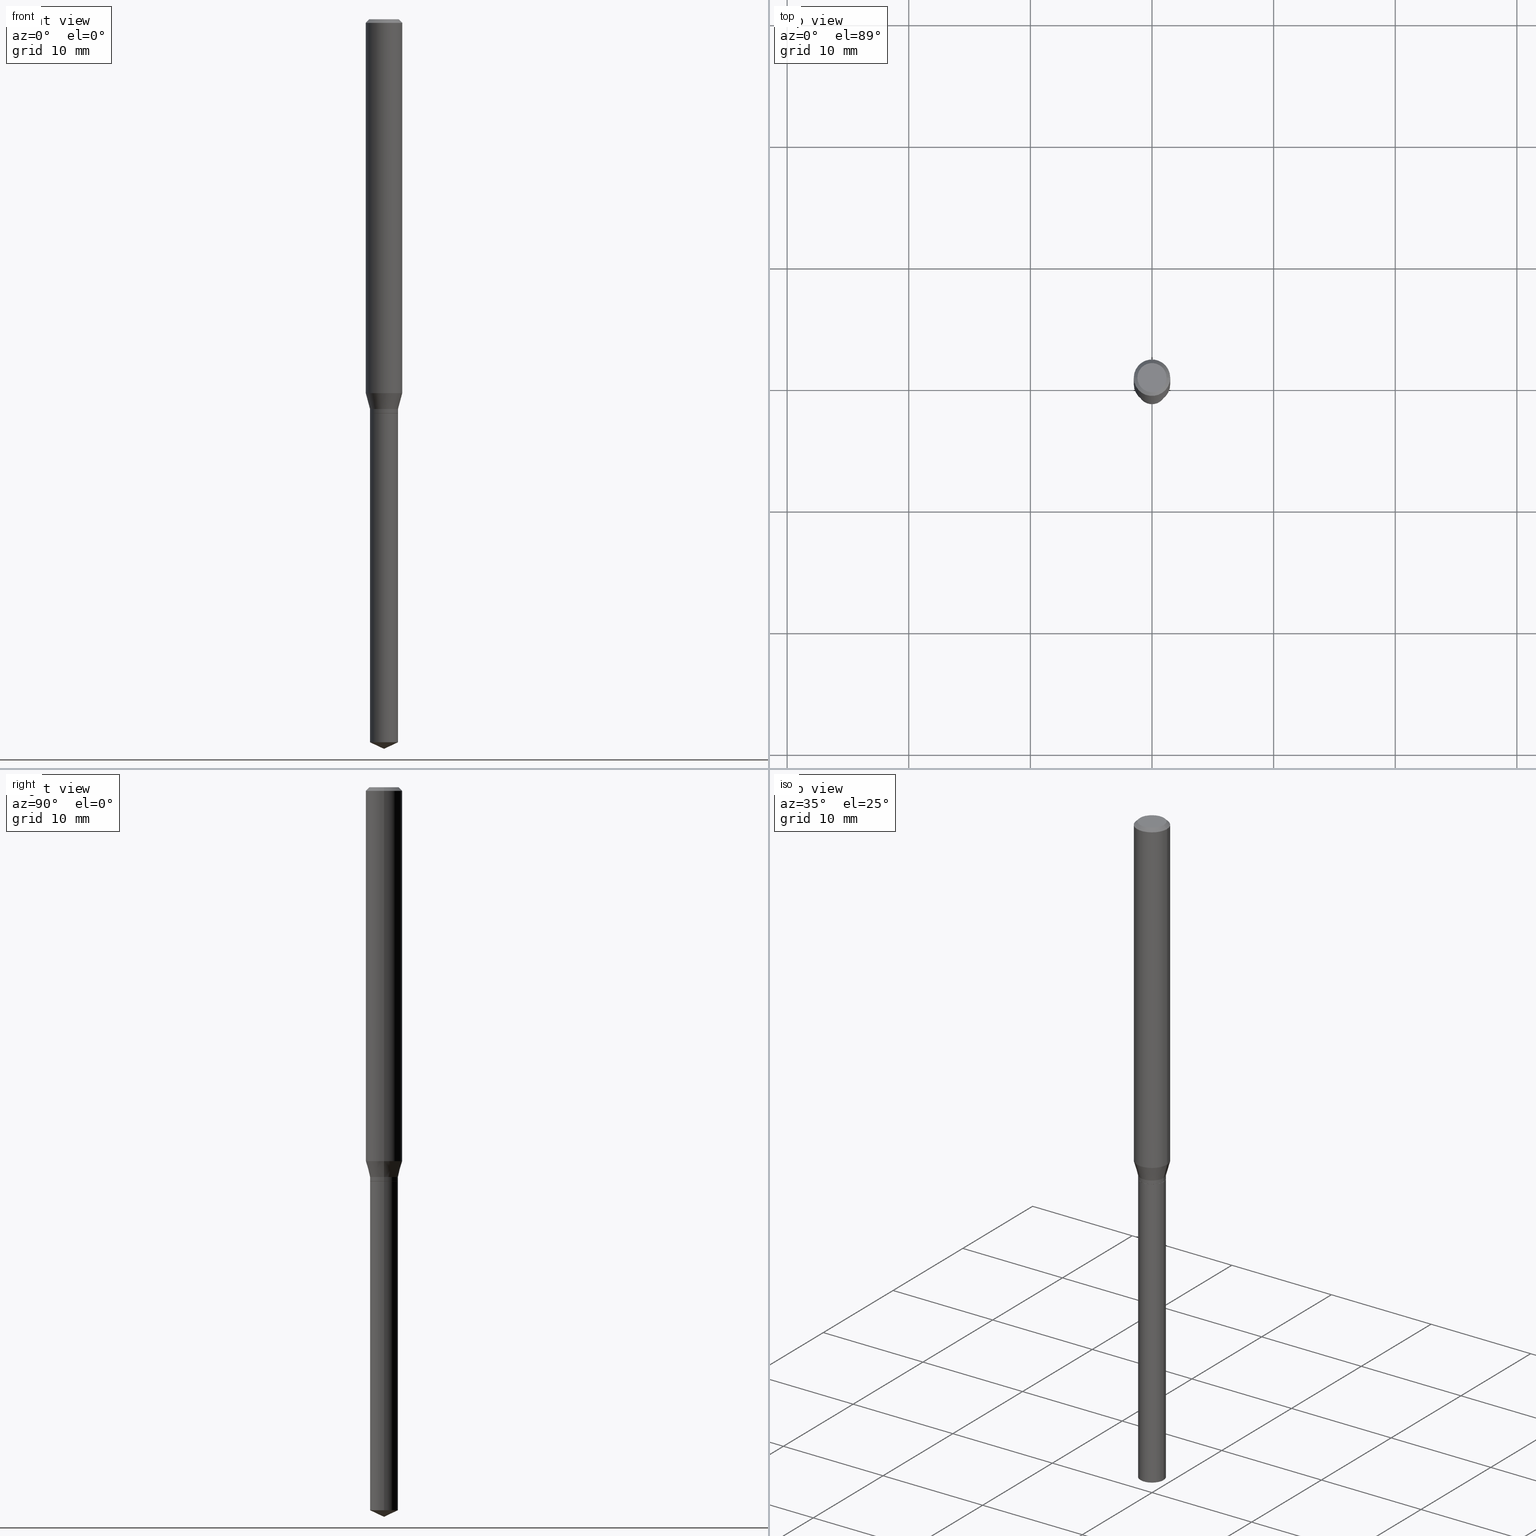
[diagram: canonical four-view strip — front | top / right | iso, engineering-drawing reading convention]
A machine part, canonical four-view strip (front | top / right | iso — engineering-drawing reading convention). The complete STEP part file that produces these views, byte-faithful:
ISO-10303-21;
HEADER;
FILE_DESCRIPTION (( 'STEP AP203' ),
    '1' );
FILE_NAME ('08382.STEP',
    '2024-04-24T14:46:04',
    ( '' ),
    ( '' ),
    'SwSTEP 2.0',
    'SolidWorks 2023',
    '' );
FILE_SCHEMA (( 'CONFIG_CONTROL_DESIGN' ));
ENDSEC;

DATA;
#1 = AXIS2_PLACEMENT_3D ( 'NONE', #481, #247, #170 ) ;
#2 = EDGE_CURVE ( 'NONE', #431, #167, #312, .T. ) ;
#3 = CONICAL_SURFACE ( 'NONE', #271, 84.42940631927322670, 1.134464013796310899 ) ;
#4 = FACE_OUTER_BOUND ( 'NONE', #17, .T. ) ;
#5 = DIRECTION ( 'NONE',  ( 1.000000000000000000, -6.982962677686259611E-15, 0.000000000000000000 ) ) ;
#6 = CARTESIAN_POINT ( 'NONE',  ( 0.04530000000000002774, -3.163282092991880824E-16, 2.208908079435559889E-30 ) ) ;
#7 = DIRECTION ( 'NONE',  ( -2.445468806185136877E-29, 3.491481338843145188E-15, 1.000000000000000000 ) ) ;
#8 = DIRECTION ( 'NONE',  ( -2.445468806185136597E-29, 3.491481338843145583E-15, 1.000000000000000000 ) ) ;
#9 = ORIENTED_EDGE ( 'NONE', *, *, #266, .F. ) ;
#10 = LINE ( 'NONE', #348, #304 ) ;
#11 = ORIENTED_EDGE ( 'NONE', *, *, #372, .T. ) ;
#12 = DIMENSIONAL_EXPONENTS ( 1.000000000000000000, 0.000000000000000000, 0.000000000000000000, 0.000000000000000000, 0.000000000000000000, 0.000000000000000000, 0.000000000000000000 ) ;
#13 = EDGE_CURVE ( 'NONE', #440, #24, #77, .T. ) ;
#14 = CARTESIAN_POINT ( 'NONE',  ( 2.960201599440548705E-29, -4.226383349286463524E-15, -1.210484301395927664 ) ) ;
#15 = CIRCLE ( 'NONE', #418, 0.04529999999999999999 ) ;
#16 = CONICAL_SURFACE ( 'NONE', #65, 0.04479999999999999954, 0.7853981633978495136 ) ;
#17 = EDGE_LOOP ( 'NONE', ( #390, #175 ) ) ;
#18 = DIRECTION ( 'NONE',  ( 2.445468806185136597E-29, -3.491481338843145583E-15, -1.000000000000000000 ) ) ;
#19 = VERTEX_POINT ( 'NONE', #373 ) ;
#20 = CARTESIAN_POINT ( 'NONE',  ( -0.04530000000000000693, -7.851249929804849954E-15, -2.340876263085578390 ) ) ;
#21 = VERTEX_POINT ( 'NONE', #106 ) ;
#22 = ADVANCED_FACE ( 'NONE', ( #71 ), #37, .T. ) ;
#23 = DIRECTION ( 'NONE',  ( -0.2588190451025211281, 5.211531920934548675E-15, 0.9659258262890682012 ) ) ;
#24 = VERTEX_POINT ( 'NONE', #110 ) ;
#25 = VECTOR ( 'NONE', #7, 39.37007874015748143 ) ;
#26 = CARTESIAN_POINT ( 'NONE',  ( 0.04724000000000000421, -3.852183633974369345E-16, -3.380025165621689721E-19 ) ) ;
#27 = ORIENTED_EDGE ( 'NONE', *, *, #208, .F. ) ;
#28 = CARTESIAN_POINT ( 'NONE',  ( 3.117728181005432506E-29, -4.451289558891128871E-15, -1.274900000000000588 ) ) ;
#29 = DIRECTION ( 'NONE',  ( -2.445468806185136597E-29, 3.491481338843145583E-15, 1.000000000000000000 ) ) ;
#30 = APPROVAL_PERSON_ORGANIZATION ( #487, #69, #445 ) ;
#31 = VECTOR ( 'NONE', #183, 39.37007874015748143 ) ;
#32 = COORDINATED_UNIVERSAL_TIME_OFFSET ( 5, 0, .BEHIND. ) ;
#33 = CC_DESIGN_PERSON_AND_ORGANIZATION_ASSIGNMENT ( #292, #375, ( #111 ) ) ;
#34 = ORIENTED_EDGE ( 'NONE', *, *, #229, .T. ) ;
#35 = DATE_AND_TIME ( #334, #362 ) ;
#36 = LINE ( 'NONE', #330, #31 ) ;
#37 = CYLINDRICAL_SURFACE ( 'NONE', #94, 0.04530000000000002774 ) ;
#38 = CC_DESIGN_DATE_AND_TIME_ASSIGNMENT ( #254, #216, ( #237 ) ) ;
#39 = AXIS2_PLACEMENT_3D ( 'NONE', #128, #393, #276 ) ;
#40 = VECTOR ( 'NONE', #235, 39.37007874015748143 ) ;
#41 = DIRECTION ( 'NONE',  ( -2.445468806185136597E-29, 3.491481338843145583E-15, 1.000000000000000000 ) ) ;
#42 = CARTESIAN_POINT ( 'NONE',  ( -0.04724000000000000421, 3.504923541997677355E-16, -3.380025165670481712E-19 ) ) ;
#43 = CARTESIAN_POINT ( 'NONE',  ( -9.050210213589845843E-28, 1.292130163076976058E-13, 37.00807874015747956 ) ) ;
#44 = PRODUCT_DEFINITION_SHAPE ( 'NONE', 'NONE',  #237 ) ;
#45 = EDGE_LOOP ( 'NONE', ( #252, #360, #310, #64 ) ) ;
#46 = AXIS2_PLACEMENT_3D ( 'NONE', #326, #182, #176 ) ;
#47 = DIRECTION ( 'NONE',  ( 2.438088387897960049E-29, -3.491481338843145188E-15, -1.000000000000000000 ) ) ;
#48 = AXIS2_PLACEMENT_3D ( 'NONE', #488, #184, #259 ) ;
#49 = CARTESIAN_POINT ( 'NONE',  ( 0.04530000000000002081, -4.721879362651469813E-15, -1.261800000000000255 ) ) ;
#50 = ADVANCED_FACE ( 'NONE', ( #114 ), #295, .T. ) ;
#51 = DIRECTION ( 'NONE',  ( 1.000000000000000000, -6.982962677686268288E-15, 0.000000000000000000 ) ) ;
#52 = DIRECTION ( 'NONE',  ( -0.7071067811868312347, 7.493145998871379679E-15, 0.7071067811862637997 ) ) ;
#53 = CC_DESIGN_APPROVAL ( #455, ( #156 ) ) ;
#54 = EDGE_LOOP ( 'NONE', ( #435, #275, #321, #211 ) ) ;
#55 = AXIS2_PLACEMENT_3D ( 'NONE', #413, #287, #177 ) ;
#56 = PERSON_AND_ORGANIZATION ( #480, #79 ) ;
#57 = FACE_OUTER_BOUND ( 'NONE', #420, .T. ) ;
#58 = ADVANCED_FACE ( 'NONE', ( #255 ), #442, .T. ) ;
#59 = ORIENTED_EDGE ( 'NONE', *, *, #132, .T. ) ;
#60 = DIRECTION ( 'NONE',  ( -1.000000000000000000, 6.982962677686265922E-15, -4.876176775795935793E-29 ) ) ;
#61 = EDGE_LOOP ( 'NONE', ( #127, #129, #268, #27 ) ) ;
#62 = CALENDAR_DATE ( 2024, 24, 4 ) ;
#63 = DIRECTION ( 'NONE',  ( -2.445468806185136597E-29, 3.491481338843145583E-15, 1.000000000000000000 ) ) ;
#64 = ORIENTED_EDGE ( 'NONE', *, *, #477, .F. ) ;
#65 = AXIS2_PLACEMENT_3D ( 'NONE', #396, #475, #209 ) ;
#66 = VECTOR ( 'NONE', #228, 39.37007874015748854 ) ;
#67 =( LENGTH_UNIT ( ) NAMED_UNIT ( * ) SI_UNIT ( $, .METRE. ) );
#68 = VERTEX_POINT ( 'NONE', #339 ) ;
#69 = APPROVAL ( #145, 'UNSPECIFIED' ) ;
#70 = COORDINATED_UNIVERSAL_TIME_OFFSET ( 5, 0, .BEHIND. ) ;
#71 = FACE_OUTER_BOUND ( 'NONE', #61, .T. ) ;
#72 = DIRECTION ( 'NONE',  ( -2.445468806185136597E-29, 3.491481338843145583E-15, 1.000000000000000000 ) ) ;
#73 = APPLICATION_PROTOCOL_DEFINITION ( 'international standard', 'config_control_design', 1994, #296 ) ;
#74 = EDGE_CURVE ( 'NONE', #19, #153, #225, .T. ) ;
#75 = PLANE ( 'NONE',  #55 ) ;
#76 = ORIENTED_EDGE ( 'NONE', *, *, #421, .T. ) ;
#77 = LINE ( 'NONE', #338, #112 ) ;
#78 = AXIS2_PLACEMENT_3D ( 'NONE', #446, #453, #484 ) ;
#79 = ORGANIZATION ( 'UNSPECIFIED', 'UNSPECIFIED', '' ) ;
#80 = LINE ( 'NONE', #464, #227 ) ;
#81 = EDGE_CURVE ( 'NONE', #205, #448, #199, .T. ) ;
#82 = FACE_OUTER_BOUND ( 'NONE', #285, .T. ) ;
#83 = CARTESIAN_POINT ( 'NONE',  ( -9.050210213589845843E-28, 1.292130163076976058E-13, 37.00807874015747956 ) ) ;
#84 =( GEOMETRIC_REPRESENTATION_CONTEXT ( 3 ) GLOBAL_UNCERTAINTY_ASSIGNED_CONTEXT ( ( #100 ) ) GLOBAL_UNIT_ASSIGNED_CONTEXT ( ( #447, #328, #409 ) ) REPRESENTATION_CONTEXT ( 'NONE', 'WORKASPACE' ) );
#85 = CARTESIAN_POINT ( 'NONE',  ( -0.05905000000000015098, -3.806807863820123242E-15, -1.210484301395927664 ) ) ;
#86 = AXIS2_PLACEMENT_3D ( 'NONE', #83, #382, #272 ) ;
#87 = ORIENTED_EDGE ( 'NONE', *, *, #428, .F. ) ;
#88 = FACE_OUTER_BOUND ( 'NONE', #140, .T. ) ;
#89 = DIRECTION ( 'NONE',  ( 1.000000000000000000, -6.982962677686266711E-15, 0.000000000000000000 ) ) ;
#90 = ORIENTED_EDGE ( 'NONE', *, *, #385, .F. ) ;
#91 = CARTESIAN_POINT ( 'NONE',  ( 0.04530000000000002081, -4.721879362651469813E-15, -1.261800000000000255 ) ) ;
#92 = CIRCLE ( 'NONE', #124, 0.05905000000000015098 ) ;
#93 = ORIENTED_EDGE ( 'NONE', *, *, #13, .T. ) ;
#94 = AXIS2_PLACEMENT_3D ( 'NONE', #451, #221, #107 ) ;
#95 = CARTESIAN_POINT ( 'NONE',  ( -0.04530000000000002081, -4.083675294052956100E-15, -1.261800000000000255 ) ) ;
#96 = ORIENTED_EDGE ( 'NONE', *, *, #288, .T. ) ;
#97 = APPROVAL_ROLE ( '' ) ;
#98 = CARTESIAN_POINT ( 'NONE',  ( 0.04479999999999999954, -4.765872027520893280E-15, -1.275400000000000311 ) ) ;
#99 = ORIENTED_EDGE ( 'NONE', *, *, #428, .T. ) ;
#100 = UNCERTAINTY_MEASURE_WITH_UNIT (LENGTH_MEASURE( 1.000000000000000082E-05 ), #447, 'distance_accuracy_value', 'NONE');
#101 = ORIENTED_EDGE ( 'NONE', *, *, #336, .F. ) ;
#102 = AXIS2_PLACEMENT_3D ( 'NONE', #406, #368, #449 ) ;
#103 = ADVANCED_FACE ( 'NONE', ( #366 ), #251, .T. ) ;
#104 = AXIS2_PLACEMENT_3D ( 'NONE', #257, #377, #411 ) ;
#105 = APPROVAL_DATE_TIME ( #109, #69 ) ;
#106 = CARTESIAN_POINT ( 'NONE',  ( -0.04529999999999999999, -5.991204685033035870E-15, -1.275400000000000311 ) ) ;
#107 = DIRECTION ( 'NONE',  ( 1.000000000000000000, -6.982962677686266711E-15, 4.876176775795935232E-29 ) ) ;
#108 = ADVANCED_FACE ( 'NONE', ( #149 ), #179, .T. ) ;
#109 = DATE_AND_TIME ( #113, #210 ) ;
#110 = CARTESIAN_POINT ( 'NONE',  ( 0.04530000000000000693, -8.489453998403362090E-15, -2.340876263085578390 ) ) ;
#111 = PRODUCT_DEFINITION_FORMATION_WITH_SPECIFIED_SOURCE ( 'ANY', '', #161, .NOT_KNOWN. ) ;
#112 = VECTOR ( 'NONE', #298, 39.37007874015748854 ) ;
#113 = CALENDAR_DATE ( 2024, 24, 4 ) ;
#114 = FACE_OUTER_BOUND ( 'NONE', #250, .T. ) ;
#115 = DIRECTION ( 'NONE',  ( -2.445468806185136597E-29, 3.491481338843145583E-15, 1.000000000000000000 ) ) ;
#116 = DIRECTION ( 'NONE',  ( -2.445468806185136877E-29, 3.491481338843145188E-15, 1.000000000000000000 ) ) ;
#117 = CC_DESIGN_SECURITY_CLASSIFICATION ( #156, ( #111 ) ) ;
#118 = CARTESIAN_POINT ( 'NONE',  ( 3.118950915408523626E-29, -4.453035299560548797E-15, -1.275400000000000311 ) ) ;
#119 = ORIENTED_EDGE ( 'NONE', *, *, #347, .F. ) ;
#120 = LINE ( 'NONE', #454, #363 ) ;
#121 = ORIENTED_EDGE ( 'NONE', *, *, #273, .F. ) ;
#122 = ADVANCED_FACE ( 'NONE', ( #4 ), #75, .F. ) ;
#123 = DIRECTION ( 'NONE',  ( 0.7071067811865453523, -7.319954787623248157E-15, -0.7071067811865496822 ) ) ;
#124 = AXIS2_PLACEMENT_3D ( 'NONE', #14, #398, #244 ) ;
#125 = DIRECTION ( 'NONE',  ( -2.445468806185136597E-29, 3.491481338843145583E-15, 1.000000000000000000 ) ) ;
#126 = CIRCLE ( 'NONE', #333, 0.04479999999999999954 ) ;
#127 = ORIENTED_EDGE ( 'NONE', *, *, #452, .T. ) ;
#128 = CARTESIAN_POINT ( 'NONE',  ( 3.118950915408523626E-29, -4.453035299560548797E-15, -1.275400000000000311 ) ) ;
#129 = ORIENTED_EDGE ( 'NONE', *, *, #468, .T. ) ;
#130 = DIRECTION ( 'NONE',  ( 1.000000000000000000, -6.982962677686266711E-15, 4.876176775795936353E-29 ) ) ;
#131 = ORIENTED_EDGE ( 'NONE', *, *, #139, .F. ) ;
#132 = EDGE_CURVE ( 'NONE', #476, #68, #36, .T. ) ;
#133 = DIRECTION ( 'NONE',  ( -2.445468806185136597E-29, 3.491481338843145583E-15, 1.000000000000000000 ) ) ;
#134 = AXIS2_PLACEMENT_3D ( 'NONE', #240, #467, #89 ) ;
#135 = ORIENTED_EDGE ( 'NONE', *, *, #74, .F. ) ;
#136 = LINE ( 'NONE', #478, #233 ) ;
#137 = ORIENTED_EDGE ( 'NONE', *, *, #357, .F. ) ;
#138 = DIRECTION ( 'NONE',  ( -2.445468806185136597E-29, 3.491481338843145583E-15, 1.000000000000000000 ) ) ;
#139 = EDGE_CURVE ( 'NONE', #427, #24, #15, .T. ) ;
#140 = EDGE_LOOP ( 'NONE', ( #479, #207 ) ) ;
#141 = DATE_AND_TIME ( #62, #485 ) ;
#142 = DIRECTION ( 'NONE',  ( 1.000000000000000000, -6.982962677686266711E-15, 4.876185090822587894E-29 ) ) ;
#143 = CC_DESIGN_APPROVAL ( #473, ( #111 ) ) ;
#144 = VECTOR ( 'NONE', #423, 39.37007874015748143 ) ;
#145 = APPROVAL_STATUS ( 'not_yet_approved' ) ;
#146 = DIRECTION ( 'NONE',  ( 1.000000000000000000, -6.982962677686271444E-15, 0.000000000000000000 ) ) ;
#147 = EDGE_CURVE ( 'NONE', #24, #427, #152, .T. ) ;
#148 = APPROVAL_DATE_TIME ( #35, #473 ) ;
#149 = FACE_OUTER_BOUND ( 'NONE', #325, .T. ) ;
#150 = COORDINATED_UNIVERSAL_TIME_OFFSET ( 5, 0, .BEHIND. ) ;
#151 = DIRECTION ( 'NONE',  ( -2.445468806185136597E-29, 3.491481338843145583E-15, 1.000000000000000000 ) ) ;
#152 = CIRCLE ( 'NONE', #379, 0.04529999999999999999 ) ;
#153 = VERTEX_POINT ( 'NONE', #291 ) ;
#154 = DIRECTION ( 'NONE',  ( -2.445468806185136597E-29, 3.491481338843145583E-15, 1.000000000000000000 ) ) ;
#155 = DIRECTION ( 'NONE',  ( 1.000000000000000000, -6.982962677686268288E-15, 0.000000000000000000 ) ) ;
#156 = SECURITY_CLASSIFICATION ( '', '', #433 ) ;
#157 = LINE ( 'NONE', #425, #66 ) ;
#158 = EDGE_CURVE ( 'NONE', #300, #195, #462, .T. ) ;
#159 = CARTESIAN_POINT ( 'NONE',  ( -0.04479999999999999954, -4.132062926765913850E-15, -1.275400000000000311 ) ) ;
#160 = DIRECTION ( 'NONE',  ( -1.000000000000000000, 6.982962677686265922E-15, -4.876176775795935793E-29 ) ) ;
#161 = PRODUCT ( '08382', '08382', '', ( #331 ) ) ;
#162 = ORIENTED_EDGE ( 'NONE', *, *, #477, .T. ) ;
#163 = FACE_OUTER_BOUND ( 'NONE', #242, .T. ) ;
#164 = ORIENTED_EDGE ( 'NONE', *, *, #253, .F. ) ;
#165 = DIRECTION ( 'NONE',  ( 1.000000000000000000, -6.982962677686266711E-15, 4.876185090822587894E-29 ) ) ;
#166 = ADVANCED_FACE ( 'NONE', ( #265 ), #424, .T. ) ;
#167 = VERTEX_POINT ( 'NONE', #341 ) ;
#168 = CARTESIAN_POINT ( 'NONE',  ( 5.776197320209293305E-29, -8.246878922347511025E-15, -2.362000000000000099 ) ) ;
#169 = ORIENTED_EDGE ( 'NONE', *, *, #336, .T. ) ;
#170 = DIRECTION ( 'NONE',  ( 1.000000000000000000, -6.982962677686266711E-15, 4.876176775795936353E-29 ) ) ;
#171 = ORIENTED_EDGE ( 'NONE', *, *, #414, .T. ) ;
#172 = AXIS2_PLACEMENT_3D ( 'NONE', #28, #181, #222 ) ;
#173 = EDGE_CURVE ( 'NONE', #448, #68, #10, .T. ) ;
#174 = CARTESIAN_POINT ( 'NONE',  ( 0.05905000000000015098, -4.638727295403837655E-15, -1.210484301395927664 ) ) ;
#175 = ORIENTED_EDGE ( 'NONE', *, *, #303, .F. ) ;
#176 = DIRECTION ( 'NONE',  ( 1.000000000000000000, -6.982962677686262766E-15, 0.000000000000000000 ) ) ;
#177 = DIRECTION ( 'NONE',  ( 1.000000000000000000, -6.982962677686265922E-15, 4.876176775795935793E-29 ) ) ;
#178 = CIRCLE ( 'NONE', #134, 0.05904999999999999832 ) ;
#179 = CYLINDRICAL_SURFACE ( 'NONE', #104, 0.04529999999999999999 ) ;
#180 = APPROVAL_STATUS ( 'not_yet_approved' ) ;
#181 = DIRECTION ( 'NONE',  ( -2.445468806185136597E-29, 3.491481338843145583E-15, 1.000000000000000000 ) ) ;
#182 = DIRECTION ( 'NONE',  ( -2.445468806185136597E-29, 3.491481338843145583E-15, 1.000000000000000000 ) ) ;
#183 = DIRECTION ( 'NONE',  ( -2.445468806185136877E-29, 3.491481338843145188E-15, 1.000000000000000000 ) ) ;
#184 = DIRECTION ( 'NONE',  ( -2.445468806185136597E-29, 3.491481338843145583E-15, 1.000000000000000000 ) ) ;
#185 = AXIS2_PLACEMENT_3D ( 'NONE', #426, #350, #165 ) ;
#186 = EDGE_CURVE ( 'NONE', #344, #281, #410, .T. ) ;
#187 = FACE_OUTER_BOUND ( 'NONE', #438, .T. ) ;
#188 = DIRECTION ( 'NONE',  ( -2.445468806185136597E-29, 3.491481338843145583E-15, 1.000000000000000000 ) ) ;
#189 = DIRECTION ( 'NONE',  ( 1.000000000000000000, -6.982962677686267499E-15, 0.000000000000000000 ) ) ;
#190 = ADVANCED_FACE ( 'NONE', ( #82 ), #234, .T. ) ;
#191 = EDGE_LOOP ( 'NONE', ( #121, #93, #131 ) ) ;
#192 = APPROVAL_PERSON_ORGANIZATION ( #371, #473, #219 ) ;
#193 = AXIS2_PLACEMENT_3D ( 'NONE', #381, #154, #232 ) ;
#194 = DIRECTION ( 'NONE',  ( 0.2588190451025211281, 1.565188264969623940E-15, 0.9659258262890682012 ) ) ;
#195 = VERTEX_POINT ( 'NONE', #261 ) ;
#196 = APPLICATION_CONTEXT ( 'configuration controlled 3d designs of mechanical parts and assemblies' ) ;
#197 = LINE ( 'NONE', #307, #144 ) ;
#198 = DIRECTION ( 'NONE',  ( -1.000000000000000000, 6.982962677686266711E-15, 0.000000000000000000 ) ) ;
#199 = CIRCLE ( 'NONE', #486, 0.04724000000000000421 ) ;
#200 = AXIS2_PLACEMENT_3D ( 'NONE', #274, #63, #51 ) ;
#201 = EDGE_CURVE ( 'NONE', #195, #68, #258, .T. ) ;
#202 = CARTESIAN_POINT ( 'NONE',  ( 0.04529999999999999999, -4.769363508859737076E-15, -1.275400000000000311 ) ) ;
#203 = ORIENTED_EDGE ( 'NONE', *, *, #414, .F. ) ;
#204 = PLANE ( 'NONE',  #457 ) ;
#205 = VERTEX_POINT ( 'NONE', #42 ) ;
#206 = FACE_OUTER_BOUND ( 'NONE', #260, .T. ) ;
#207 = ORIENTED_EDGE ( 'NONE', *, *, #385, .T. ) ;
#208 = EDGE_CURVE ( 'NONE', #153, #431, #384, .T. ) ;
#209 = DIRECTION ( 'NONE',  ( 1.000000000000000000, -6.982962677686259611E-15, 0.000000000000000000 ) ) ;
#210 = LOCAL_TIME ( 10, 46, 4.000000000000000000, #150 ) ;
#211 = ORIENTED_EDGE ( 'NONE', *, *, #201, .T. ) ;
#212 = VECTOR ( 'NONE', #194, 39.37007874015748143 ) ;
#213 = ORIENTED_EDGE ( 'NONE', *, *, #229, .F. ) ;
#214 = PERSON_AND_ORGANIZATION_ROLE ( 'creator' ) ;
#215 = DIRECTION ( 'NONE',  ( -1.000000000000000000, 6.982962677686266711E-15, 0.000000000000000000 ) ) ;
#216 = DATE_TIME_ROLE ( 'creation_date' ) ;
#217 = ADVANCED_FACE ( 'NONE', ( #458 ), #450, .T. ) ;
#218 = DIRECTION ( 'NONE',  ( 1.000000000000000000, -6.982962677686268288E-15, 0.000000000000000000 ) ) ;
#219 = APPROVAL_ROLE ( '' ) ;
#220 = CC_DESIGN_DATE_AND_TIME_ASSIGNMENT ( #141, #355, ( #156 ) ) ;
#221 = DIRECTION ( 'NONE',  ( -2.445468806185136597E-29, 3.491481338843145583E-15, 1.000000000000000000 ) ) ;
#222 = DIRECTION ( 'NONE',  ( 1.000000000000000000, -6.982962677686266711E-15, 0.000000000000000000 ) ) ;
#223 = ADVANCED_FACE ( 'NONE', ( #187 ), #417, .F. ) ;
#224 = DIRECTION ( 'NONE',  ( 1.000000000000000000, -6.982962677686266711E-15, 4.876176775795935232E-29 ) ) ;
#225 = CIRCLE ( 'NONE', #172, 0.04530000000000002774 ) ;
#226 = AXIS2_PLACEMENT_3D ( 'NONE', #359, #316, #130 ) ;
#227 = VECTOR ( 'NONE', #342, 39.37007874015748143 ) ;
#228 = DIRECTION ( 'NONE',  ( -0.9063077870366484934, 7.915267918739014631E-15, 0.4226182617407023834 ) ) ;
#229 = EDGE_CURVE ( 'NONE', #24, #354, #120, .T. ) ;
#230 = DIRECTION ( 'NONE',  ( 1.000000000000000000, -6.982962677686266711E-15, 0.000000000000000000 ) ) ;
#231 = ORIENTED_EDGE ( 'NONE', *, *, #13, .F. ) ;
#232 = DIRECTION ( 'NONE',  ( 1.000000000000000000, -6.982962677686259611E-15, 0.000000000000000000 ) ) ;
#233 = VECTOR ( 'NONE', #282, 39.37007874015748143 ) ;
#234 = CONICAL_SURFACE ( 'NONE', #264, 0.04479999999999999954, 0.7853981633978495136 ) ;
#235 = DIRECTION ( 'NONE',  ( -2.445468806185136877E-29, 3.491481338843145188E-15, 1.000000000000000000 ) ) ;
#236 = CARTESIAN_POINT ( 'NONE',  ( 4.132873053354867254E-48, -5.900647395337818946E-34, -1.690012582823346072E-19 ) ) ;
#237 = PRODUCT_DEFINITION ( 'UNKNOWN', '', #111, #456 ) ;
#238 = CARTESIAN_POINT ( 'NONE',  ( -0.04479999999999999954, -4.134712153940024262E-15, -1.275400000000000311 ) ) ;
#239 = EDGE_LOOP ( 'NONE', ( #246, #397, #101, #9 ) ) ;
#240 = CARTESIAN_POINT ( 'NONE',  ( 2.888098660104663766E-31, -4.123439461173779647E-17, -0.01181000000000007044 ) ) ;
#241 = CLOSED_SHELL ( 'NONE', ( #50, #245, #217, #108, #223 ) ) ;
#242 = EDGE_LOOP ( 'NONE', ( #277, #394, #96, #135 ) ) ;
#243 = PERSON_AND_ORGANIZATION_ROLE ( 'design_supplier' ) ;
#244 = DIRECTION ( 'NONE',  ( 1.000000000000000000, -6.982962677686262766E-15, 0.000000000000000000 ) ) ;
#245 = ADVANCED_FACE ( 'NONE', ( #309 ), #3, .T. ) ;
#246 = ORIENTED_EDGE ( 'NONE', *, *, #2, .T. ) ;
#247 = DIRECTION ( 'NONE',  ( -2.445468806185136597E-29, 3.491481338843145583E-15, 1.000000000000000000 ) ) ;
#248 = ORIENTED_EDGE ( 'NONE', *, *, #139, .T. ) ;
#249 = CALENDAR_DATE ( 2024, 24, 4 ) ;
#250 = EDGE_LOOP ( 'NONE', ( #283, #171, #87, #213 ) ) ;
#251 = CONICAL_SURFACE ( 'NONE', #441, 0.05904999999999999832, 0.7853981633974452814 ) ;
#252 = ORIENTED_EDGE ( 'NONE', *, *, #461, .F. ) ;
#253 = EDGE_CURVE ( 'NONE', #205, #195, #80, .T. ) ;
#254 = DATE_AND_TIME ( #249, #294 ) ;
#255 = FACE_OUTER_BOUND ( 'NONE', #239, .T. ) ;
#256 = VECTOR ( 'NONE', #23, 39.37007874015748143 ) ;
#257 = CARTESIAN_POINT ( 'NONE',  ( 3.118950915408523626E-29, -4.453035299560548797E-15, -1.275400000000000311 ) ) ;
#258 = CIRCLE ( 'NONE', #323, 0.05904999999999999832 ) ;
#259 = DIRECTION ( 'NONE',  ( 1.000000000000000000, -6.982962677686271444E-15, 0.000000000000000000 ) ) ;
#260 = EDGE_LOOP ( 'NONE', ( #169, #346, #482, #383 ) ) ;
#261 = CARTESIAN_POINT ( 'NONE',  ( -0.05904999999999999832, -1.714233386482759753E-15, -0.01181000000000007044 ) ) ;
#262 = APPROVAL_PERSON_ORGANIZATION ( #56, #455, #97 ) ;
#263 = AXIS2_PLACEMENT_3D ( 'NONE', #388, #138, #436 ) ;
#264 = AXIS2_PLACEMENT_3D ( 'NONE', #118, #301, #340 ) ;
#265 = FACE_OUTER_BOUND ( 'NONE', #45, .T. ) ;
#266 = EDGE_CURVE ( 'NONE', #431, #476, #387, .T. ) ;
#267 = FACE_OUTER_BOUND ( 'NONE', #412, .T. ) ;
#268 = ORIENTED_EDGE ( 'NONE', *, *, #2, .F. ) ;
#269 = CARTESIAN_POINT ( 'NONE',  ( 0.000000000000000000, 0.000000000000000000, 0.000000000000000000 ) ) ;
#270 = AXIS2_PLACEMENT_3D ( 'NONE', #471, #18, #198 ) ;
#271 = AXIS2_PLACEMENT_3D ( 'NONE', #43, #463, #189 ) ;
#272 = DIRECTION ( 'NONE',  ( 1.000000000000000000, -6.982962677686267499E-15, 0.000000000000000000 ) ) ;
#273 = EDGE_CURVE ( 'NONE', #440, #427, #157, .T. ) ;
#274 = CARTESIAN_POINT ( 'NONE',  ( 3.085692539644405368E-29, -4.405551153352281533E-15, -1.261800000000000255 ) ) ;
#275 = ORIENTED_EDGE ( 'NONE', *, *, #81, .F. ) ;
#276 = DIRECTION ( 'NONE',  ( 1.000000000000000000, -6.982962677686271444E-15, 0.000000000000000000 ) ) ;
#277 = ORIENTED_EDGE ( 'NONE', *, *, #372, .F. ) ;
#278 = CALENDAR_DATE ( 2024, 24, 4 ) ;
#279 = ADVANCED_FACE ( 'NONE', ( #267 ), #422, .T. ) ;
#280 = DIRECTION ( 'NONE',  ( 1.000000000000000000, -6.982962677686266711E-15, 0.000000000000000000 ) ) ;
#281 = VERTEX_POINT ( 'NONE', #159 ) ;
#282 = DIRECTION ( 'NONE',  ( -2.445468806185136877E-29, 3.491481338843145188E-15, 1.000000000000000000 ) ) ;
#283 = ORIENTED_EDGE ( 'NONE', *, *, #147, .T. ) ;
#284 = DIRECTION ( 'NONE',  ( -2.445468806185136877E-29, 3.491481338843145188E-15, 1.000000000000000000 ) ) ;
#285 = EDGE_LOOP ( 'NONE', ( #469, #11, #358, #327 ) ) ;
#286 = CIRCLE ( 'NONE', #185, 0.04724000000000000421 ) ;
#287 = DIRECTION ( 'NONE',  ( -2.438088387897960049E-29, 3.491481338843145188E-15, 1.000000000000000000 ) ) ;
#288 = EDGE_CURVE ( 'NONE', #344, #153, #197, .T. ) ;
#289 = ADVANCED_BREP_SHAPE_REPRESENTATION ( '08382', ( #297, #466, #102 ), #84 ) ;
#290 = PERSON_AND_ORGANIZATION ( #480, #79 ) ;
#291 = CARTESIAN_POINT ( 'NONE',  ( 0.04530000000000002774, -4.767617768190317151E-15, -1.274900000000000588 ) ) ;
#292 = PERSON_AND_ORGANIZATION ( #480, #79 ) ;
#293 = ORIENTED_EDGE ( 'NONE', *, *, #468, .F. ) ;
#294 = LOCAL_TIME ( 10, 46, 4.000000000000000000, #70 ) ;
#295 = CYLINDRICAL_SURFACE ( 'NONE', #48, 0.04529999999999999999 ) ;
#296 = APPLICATION_CONTEXT ( 'configuration controlled 3d designs of mechanical parts and assemblies' ) ;
#297 = MANIFOLD_SOLID_BREP ( 'Body-Move/Copy2[1]', #241 ) ;
#298 = DIRECTION ( 'NONE',  ( 0.9063077870366484934, -4.853149677051359068E-15, 0.4226182617407023834 ) ) ;
#299 = CARTESIAN_POINT ( 'NONE',  ( 3.118950915408523626E-29, -4.453035299560548797E-15, -1.275400000000000311 ) ) ;
#300 = VERTEX_POINT ( 'NONE', #85 ) ;
#301 = DIRECTION ( 'NONE',  ( -2.445468806185136597E-29, 3.491481338843145583E-15, 1.000000000000000000 ) ) ;
#302 = CONICAL_SURFACE ( 'NONE', #270, 0.05904999999999999832, 0.7853981633974452814 ) ;
#303 = EDGE_CURVE ( 'NONE', #281, #344, #126, .T. ) ;
#304 = VECTOR ( 'NONE', #123, 39.37007874015748143 ) ;
#305 = CARTESIAN_POINT ( 'NONE',  ( -0.05905000000000007465, 4.195754854663396902E-16, -2.904631170795525395E-30 ) ) ;
#306 = CC_DESIGN_PERSON_AND_ORGANIZATION_ASSIGNMENT ( #474, #243, ( #111 ) ) ;
#307 = CARTESIAN_POINT ( 'NONE',  ( 0.04479999999999999954, -4.765872027520893280E-15, -1.275400000000000311 ) ) ;
#308 = ADVANCED_FACE ( 'NONE', ( #57 ), #353, .T. ) ;
#309 = FACE_OUTER_BOUND ( 'NONE', #332, .T. ) ;
#310 = ORIENTED_EDGE ( 'NONE', *, *, #266, .T. ) ;
#311 = CIRCLE ( 'NONE', #200, 0.04530000000000002081 ) ;
#312 = CIRCLE ( 'NONE', #374, 0.04530000000000002081 ) ;
#313 = LINE ( 'NONE', #238, #351 ) ;
#314 = ORIENTED_EDGE ( 'NONE', *, *, #158, .F. ) ;
#315 = APPROVAL_STATUS ( 'not_yet_approved' ) ;
#316 = DIRECTION ( 'NONE',  ( -2.445468806185136597E-29, 3.491481338843145583E-15, 1.000000000000000000 ) ) ;
#317 = ORIENTED_EDGE ( 'NONE', *, *, #147, .F. ) ;
#318 = ADVANCED_FACE ( 'NONE', ( #430 ), #302, .T. ) ;
#319 = APPROVAL_DATE_TIME ( #361, #455 ) ;
#320 = CARTESIAN_POINT ( 'NONE',  ( 3.117728181005432506E-29, -4.451289558891128871E-15, -1.274900000000000588 ) ) ;
#321 = ORIENTED_EDGE ( 'NONE', *, *, #253, .T. ) ;
#322 = COORDINATED_UNIVERSAL_TIME_OFFSET ( 5, 0, .BEHIND. ) ;
#323 = AXIS2_PLACEMENT_3D ( 'NONE', #345, #188, #230 ) ;
#324 = CYLINDRICAL_SURFACE ( 'NONE', #226, 0.05905000000000007465 ) ;
#325 = EDGE_LOOP ( 'NONE', ( #203, #248, #34, #137 ) ) ;
#326 = CARTESIAN_POINT ( 'NONE',  ( 2.960201599440548705E-29, -4.226383349286463524E-15, -1.210484301395927664 ) ) ;
#327 = ORIENTED_EDGE ( 'NONE', *, *, #288, .F. ) ;
#328 =( NAMED_UNIT ( * ) PLANE_ANGLE_UNIT ( ) SI_UNIT ( $, .RADIAN. ) );
#329 = CC_DESIGN_PERSON_AND_ORGANIZATION_ASSIGNMENT ( #290, #443, ( #161 ) ) ;
#330 = CARTESIAN_POINT ( 'NONE',  ( 0.05905000000000007465, -4.123439461173745750E-16, 2.879382386107504074E-30 ) ) ;
#331 = MECHANICAL_CONTEXT ( 'NONE', #296, 'mechanical' ) ;
#332 = EDGE_LOOP ( 'NONE', ( #231, #399, #317 ) ) ;
#333 = AXIS2_PLACEMENT_3D ( 'NONE', #378, #41, #5 ) ;
#334 = CALENDAR_DATE ( 2024, 24, 4 ) ;
#335 = CARTESIAN_POINT ( 'NONE',  ( 8.265746106709734507E-48, -1.180129479067563789E-33, -3.380025165646692144E-19 ) ) ;
#336 = EDGE_CURVE ( 'NONE', #476, #300, #92, .T. ) ;
#337 = LENGTH_MEASURE_WITH_UNIT ( LENGTH_MEASURE( 0.02539999999999999897 ), #67 );
#338 = CARTESIAN_POINT ( 'NONE',  ( 5.776197320209293305E-29, -8.246878922347511025E-15, -2.362000000000000099 ) ) ;
#339 = CARTESIAN_POINT ( 'NONE',  ( 0.05904999999999999832, -4.535783407291118600E-16, -0.01181000000000007044 ) ) ;
#340 = DIRECTION ( 'NONE',  ( 1.000000000000000000, -6.982962677686259611E-15, 0.000000000000000000 ) ) ;
#341 = CARTESIAN_POINT ( 'NONE',  ( -0.04530000000000002081, -4.106544496822378980E-15, -1.261800000000000255 ) ) ;
#342 = DIRECTION ( 'NONE',  ( -0.7071067811865453523, 2.468850131082234184E-15, -0.7071067811865496822 ) ) ;
#343 = CIRCLE ( 'NONE', #39, 0.04529999999999999999 ) ;
#344 = VERTEX_POINT ( 'NONE', #98 ) ;
#345 = CARTESIAN_POINT ( 'NONE',  ( 2.888098660104663766E-31, -4.123439461173779647E-17, -0.01181000000000007044 ) ) ;
#346 = ORIENTED_EDGE ( 'NONE', *, *, #158, .T. ) ;
#347 = EDGE_CURVE ( 'NONE', #167, #431, #311, .T. ) ;
#348 = CARTESIAN_POINT ( 'NONE',  ( 0.05904999999999999832, -4.463468013801466955E-16, -0.01181000000000007044 ) ) ;
#349 = EDGE_LOOP ( 'NONE', ( #90, #405, #76, #164 ) ) ;
#350 = DIRECTION ( 'NONE',  ( -2.445468806185136597E-29, 3.491481338843145583E-15, 1.000000000000000000 ) ) ;
#351 = VECTOR ( 'NONE', #52, 39.37007874015748143 ) ;
#352 = AXIS2_PLACEMENT_3D ( 'NONE', #269, #8, #224 ) ;
#353 = CYLINDRICAL_SURFACE ( 'NONE', #1, 0.05905000000000007465 ) ;
#354 = VERTEX_POINT ( 'NONE', #202 ) ;
#355 = DATE_TIME_ROLE ( 'classification_date' ) ;
#356 = DIRECTION ( 'NONE',  ( 2.438088387897960049E-29, -3.491481338843145188E-15, -1.000000000000000000 ) ) ;
#357 = EDGE_CURVE ( 'NONE', #21, #354, #465, .T. ) ;
#358 = ORIENTED_EDGE ( 'NONE', *, *, #452, .F. ) ;
#359 = CARTESIAN_POINT ( 'NONE',  ( 0.000000000000000000, 0.000000000000000000, 0.000000000000000000 ) ) ;
#360 = ORIENTED_EDGE ( 'NONE', *, *, #347, .T. ) ;
#361 = DATE_AND_TIME ( #278, #416 ) ;
#362 = LOCAL_TIME ( 10, 46, 4.000000000000000000, #32 ) ;
#363 = VECTOR ( 'NONE', #116, 39.37007874015748143 ) ;
#364 = LINE ( 'NONE', #389, #391 ) ;
#365 = ORIENTED_EDGE ( 'NONE', *, *, #357, .T. ) ;
#366 = FACE_OUTER_BOUND ( 'NONE', #54, .T. ) ;
#367 = CC_DESIGN_PERSON_AND_ORGANIZATION_ASSIGNMENT ( #483, #470, ( #156 ) ) ;
#368 = DIRECTION ( 'NONE',  ( 0.000000000000000000, 0.000000000000000000, 1.000000000000000000 ) ) ;
#369 = CARTESIAN_POINT ( 'NONE',  ( 5.724539880515013302E-29, -8.173125789104174599E-15, -2.340876263085578390 ) ) ;
#370 = AXIS2_PLACEMENT_3D ( 'NONE', #320, #133, #280 ) ;
#371 = PERSON_AND_ORGANIZATION ( #480, #79 ) ;
#372 = EDGE_CURVE ( 'NONE', #281, #19, #313, .T. ) ;
#373 = CARTESIAN_POINT ( 'NONE',  ( -0.04530000000000002774, -4.106544496822378980E-15, -1.274900000000000588 ) ) ;
#374 = AXIS2_PLACEMENT_3D ( 'NONE', #407, #72, #218 ) ;
#375 = PERSON_AND_ORGANIZATION_ROLE ( 'creator' ) ;
#376 = CARTESIAN_POINT ( 'NONE',  ( 2.888098660104663766E-31, -4.123439461173779647E-17, -0.01181000000000007044 ) ) ;
#377 = DIRECTION ( 'NONE',  ( -2.445468806185136597E-29, 3.491481338843145583E-15, 1.000000000000000000 ) ) ;
#378 = CARTESIAN_POINT ( 'NONE',  ( 3.118950915408523626E-29, -4.453035299560548797E-15, -1.275400000000000311 ) ) ;
#379 = AXIS2_PLACEMENT_3D ( 'NONE', #369, #29, #146 ) ;
#380 = CC_DESIGN_PERSON_AND_ORGANIZATION_ASSIGNMENT ( #404, #214, ( #237 ) ) ;
#381 = CARTESIAN_POINT ( 'NONE',  ( 3.118950915408523626E-29, -4.453035299560548797E-15, -1.275400000000000311 ) ) ;
#382 = DIRECTION ( 'NONE',  ( -2.445468806185136597E-29, 3.491481338843145583E-15, 1.000000000000000000 ) ) ;
#383 = ORIENTED_EDGE ( 'NONE', *, *, #132, .F. ) ;
#384 = LINE ( 'NONE', #6, #40 ) ;
#385 = EDGE_CURVE ( 'NONE', #448, #205, #286, .T. ) ;
#386 = AXIS2_PLACEMENT_3D ( 'NONE', #299, #47, #160 ) ;
#387 = LINE ( 'NONE', #49, #212 ) ;
#388 = CARTESIAN_POINT ( 'NONE',  ( 3.118950915408523626E-29, -4.453035299560548797E-15, -1.275400000000000311 ) ) ;
#389 = CARTESIAN_POINT ( 'NONE',  ( -0.04529999999999999999, -4.131159440261224152E-15, -1.275400000000000311 ) ) ;
#390 = ORIENTED_EDGE ( 'NONE', *, *, #186, .F. ) ;
#391 = VECTOR ( 'NONE', #284, 39.37007874015748143 ) ;
#392 = ADVANCED_FACE ( 'NONE', ( #163 ), #16, .T. ) ;
#393 = DIRECTION ( 'NONE',  ( -2.445468806185136597E-29, 3.491481338843145583E-15, 1.000000000000000000 ) ) ;
#394 = ORIENTED_EDGE ( 'NONE', *, *, #303, .T. ) ;
#395 = SHAPE_DEFINITION_REPRESENTATION ( #44, #289 ) ;
#396 = CARTESIAN_POINT ( 'NONE',  ( 3.118950915408523626E-29, -4.453035299560548797E-15, -1.275400000000000311 ) ) ;
#397 = ORIENTED_EDGE ( 'NONE', *, *, #461, .T. ) ;
#398 = DIRECTION ( 'NONE',  ( -2.445468806185136597E-29, 3.491481338843145583E-15, 1.000000000000000000 ) ) ;
#399 = ORIENTED_EDGE ( 'NONE', *, *, #273, .T. ) ;
#400 = ADVANCED_FACE ( 'NONE', ( #206 ), #324, .T. ) ;
#401 = CIRCLE ( 'NONE', #46, 0.05905000000000015098 ) ;
#402 = APPLICATION_PROTOCOL_DEFINITION ( 'international standard', 'config_control_design', 1994, #196 ) ;
#403 = ORIENTED_EDGE ( 'NONE', *, *, #201, .F. ) ;
#404 = PERSON_AND_ORGANIZATION ( #480, #79 ) ;
#405 = ORIENTED_EDGE ( 'NONE', *, *, #173, .T. ) ;
#406 = CARTESIAN_POINT ( 'NONE',  ( 0.000000000000000000, 0.000000000000000000, 0.000000000000000000 ) ) ;
#407 = CARTESIAN_POINT ( 'NONE',  ( 3.085692539644405368E-29, -4.405551153352281533E-15, -1.261800000000000255 ) ) ;
#408 = CIRCLE ( 'NONE', #370, 0.04530000000000002774 ) ;
#409 =( NAMED_UNIT ( * ) SI_UNIT ( $, .STERADIAN. ) SOLID_ANGLE_UNIT ( ) );
#410 = CIRCLE ( 'NONE', #193, 0.04479999999999999954 ) ;
#411 = DIRECTION ( 'NONE',  ( 1.000000000000000000, -6.982962677686271444E-15, 0.000000000000000000 ) ) ;
#412 = EDGE_LOOP ( 'NONE', ( #293, #472, #459, #119 ) ) ;
#413 = CARTESIAN_POINT ( 'NONE',  ( 3.118950915408523626E-29, -4.453035299560548797E-15, -1.275400000000000311 ) ) ;
#414 = EDGE_CURVE ( 'NONE', #427, #21, #364, .T. ) ;
#415 = CLOSED_SHELL ( 'NONE', ( #190, #318, #400, #58, #22, #279, #166, #308, #103, #437, #122, #392 ) ) ;
#416 = LOCAL_TIME ( 10, 46, 4.000000000000000000, #429 ) ;
#417 = PLANE ( 'NONE',  #386 ) ;
#418 = AXIS2_PLACEMENT_3D ( 'NONE', #490, #151, #444 ) ;
#419 = CARTESIAN_POINT ( 'NONE',  ( 3.085692539644405368E-29, -4.405551153352281533E-15, -1.261800000000000255 ) ) ;
#420 = EDGE_LOOP ( 'NONE', ( #314, #162, #59, #403 ) ) ;
#421 = EDGE_CURVE ( 'NONE', #68, #195, #178, .T. ) ;
#422 = CYLINDRICAL_SURFACE ( 'NONE', #352, 0.04530000000000002774 ) ;
#423 = DIRECTION ( 'NONE',  ( 0.7071067811868312347, -2.468850131085228700E-15, 0.7071067811862637997 ) ) ;
#424 = CONICAL_SURFACE ( 'NONE', #460, 0.04530000000000002081, 0.2617993877991497964 ) ;
#425 = CARTESIAN_POINT ( 'NONE',  ( 5.776197320209293305E-29, -8.246878922347511025E-15, -2.362000000000000099 ) ) ;
#426 = CARTESIAN_POINT ( 'NONE',  ( 8.265746106709734507E-48, -1.180129479067563789E-33, -3.380025165646692144E-19 ) ) ;
#427 = VERTEX_POINT ( 'NONE', #20 ) ;
#428 = EDGE_CURVE ( 'NONE', #354, #21, #343, .T. ) ;
#429 = COORDINATED_UNIVERSAL_TIME_OFFSET ( 5, 0, .BEHIND. ) ;
#430 = FACE_OUTER_BOUND ( 'NONE', #349, .T. ) ;
#431 = VERTEX_POINT ( 'NONE', #91 ) ;
#432 = CC_DESIGN_APPROVAL ( #69, ( #237 ) ) ;
#433 = SECURITY_CLASSIFICATION_LEVEL ( 'unclassified' ) ;
#434 = LINE ( 'NONE', #95, #256 ) ;
#435 = ORIENTED_EDGE ( 'NONE', *, *, #173, .F. ) ;
#436 = DIRECTION ( 'NONE',  ( 1.000000000000000000, -6.982962677686271444E-15, 0.000000000000000000 ) ) ;
#437 = ADVANCED_FACE ( 'NONE', ( #88 ), #204, .F. ) ;
#438 = EDGE_LOOP ( 'NONE', ( #99, #365 ) ) ;
#439 = PRODUCT_RELATED_PRODUCT_CATEGORY ( 'detail', '', ( #161 ) ) ;
#440 = VERTEX_POINT ( 'NONE', #168 ) ;
#441 = AXIS2_PLACEMENT_3D ( 'NONE', #376, #489, #215 ) ;
#442 = CONICAL_SURFACE ( 'NONE', #78, 0.04530000000000002081, 0.2617993877991497964 ) ;
#443 = PERSON_AND_ORGANIZATION_ROLE ( 'design_owner' ) ;
#444 = DIRECTION ( 'NONE',  ( 1.000000000000000000, -6.982962677686271444E-15, 0.000000000000000000 ) ) ;
#445 = APPROVAL_ROLE ( '' ) ;
#446 = CARTESIAN_POINT ( 'NONE',  ( 3.085692539644405368E-29, -4.405551153352281533E-15, -1.261800000000000255 ) ) ;
#447 =( CONVERSION_BASED_UNIT ( 'INCH', #337 ) LENGTH_UNIT ( ) NAMED_UNIT ( #12 ) );
#448 = VERTEX_POINT ( 'NONE', #26 ) ;
#449 = DIRECTION ( 'NONE',  ( 1.000000000000000000, 0.000000000000000000, 0.000000000000000000 ) ) ;
#450 = CONICAL_SURFACE ( 'NONE', #86, 84.42940631927322670, 1.134464013796310899 ) ;
#451 = CARTESIAN_POINT ( 'NONE',  ( 0.000000000000000000, 0.000000000000000000, 0.000000000000000000 ) ) ;
#452 = EDGE_CURVE ( 'NONE', #153, #19, #408, .T. ) ;
#453 = DIRECTION ( 'NONE',  ( -2.445468806185136597E-29, 3.491481338843145583E-15, 1.000000000000000000 ) ) ;
#454 = CARTESIAN_POINT ( 'NONE',  ( 0.04529999999999999999, -4.769363508859737076E-15, -1.275400000000000311 ) ) ;
#455 = APPROVAL ( #315, 'UNSPECIFIED' ) ;
#456 = DESIGN_CONTEXT ( 'detailed design', #196, 'design' ) ;
#457 = AXIS2_PLACEMENT_3D ( 'NONE', #236, #356, #60 ) ;
#458 = FACE_OUTER_BOUND ( 'NONE', #191, .T. ) ;
#459 = ORIENTED_EDGE ( 'NONE', *, *, #208, .T. ) ;
#460 = AXIS2_PLACEMENT_3D ( 'NONE', #419, #125, #155 ) ;
#461 = EDGE_CURVE ( 'NONE', #167, #300, #434, .T. ) ;
#462 = LINE ( 'NONE', #305, #25 ) ;
#463 = DIRECTION ( 'NONE',  ( -2.445468806185136597E-29, 3.491481338843145583E-15, 1.000000000000000000 ) ) ;
#464 = CARTESIAN_POINT ( 'NONE',  ( -0.05904999999999999832, 3.711095515056362547E-16, -0.01181000000000007044 ) ) ;
#465 = CIRCLE ( 'NONE', #263, 0.04529999999999999999 ) ;
#466 = MANIFOLD_SOLID_BREP ( 'Body-Move/Copy2[2]', #415 ) ;
#467 = DIRECTION ( 'NONE',  ( -2.445468806185136597E-29, 3.491481338843145583E-15, 1.000000000000000000 ) ) ;
#468 = EDGE_CURVE ( 'NONE', #19, #167, #136, .T. ) ;
#469 = ORIENTED_EDGE ( 'NONE', *, *, #186, .T. ) ;
#470 = PERSON_AND_ORGANIZATION_ROLE ( 'classification_officer' ) ;
#471 = CARTESIAN_POINT ( 'NONE',  ( 2.888098660104663766E-31, -4.123439461173779647E-17, -0.01181000000000007044 ) ) ;
#472 = ORIENTED_EDGE ( 'NONE', *, *, #74, .T. ) ;
#473 = APPROVAL ( #180, 'UNSPECIFIED' ) ;
#474 = PERSON_AND_ORGANIZATION ( #480, #79 ) ;
#475 = DIRECTION ( 'NONE',  ( -2.445468806185136597E-29, 3.491481338843145583E-15, 1.000000000000000000 ) ) ;
#476 = VERTEX_POINT ( 'NONE', #174 ) ;
#477 = EDGE_CURVE ( 'NONE', #300, #476, #401, .T. ) ;
#478 = CARTESIAN_POINT ( 'NONE',  ( -0.04530000000000002774, 3.218758592993255813E-16, -2.228277595885473615E-30 ) ) ;
#479 = ORIENTED_EDGE ( 'NONE', *, *, #81, .T. ) ;
#480 = PERSON ( 'UNSPECIFIED', 'UNSPECIFIED', 'UNSPECIFIED', ('UNSPECIFIED'), ('UNSPECIFIED'), ('UNSPECIFIED') ) ;
#481 = CARTESIAN_POINT ( 'NONE',  ( 0.000000000000000000, 0.000000000000000000, 0.000000000000000000 ) ) ;
#482 = ORIENTED_EDGE ( 'NONE', *, *, #421, .F. ) ;
#483 = PERSON_AND_ORGANIZATION ( #480, #79 ) ;
#484 = DIRECTION ( 'NONE',  ( 1.000000000000000000, -6.982962677686268288E-15, 0.000000000000000000 ) ) ;
#485 = LOCAL_TIME ( 10, 46, 4.000000000000000000, #322 ) ;
#486 = AXIS2_PLACEMENT_3D ( 'NONE', #335, #115, #142 ) ;
#487 = PERSON_AND_ORGANIZATION ( #480, #79 ) ;
#488 = CARTESIAN_POINT ( 'NONE',  ( 3.118950915408523626E-29, -4.453035299560548797E-15, -1.275400000000000311 ) ) ;
#489 = DIRECTION ( 'NONE',  ( 2.445468806185136597E-29, -3.491481338843145583E-15, -1.000000000000000000 ) ) ;
#490 = CARTESIAN_POINT ( 'NONE',  ( 5.724539880515013302E-29, -8.173125789104174599E-15, -2.340876263085578390 ) ) ;
ENDSEC;
END-ISO-10303-21;
